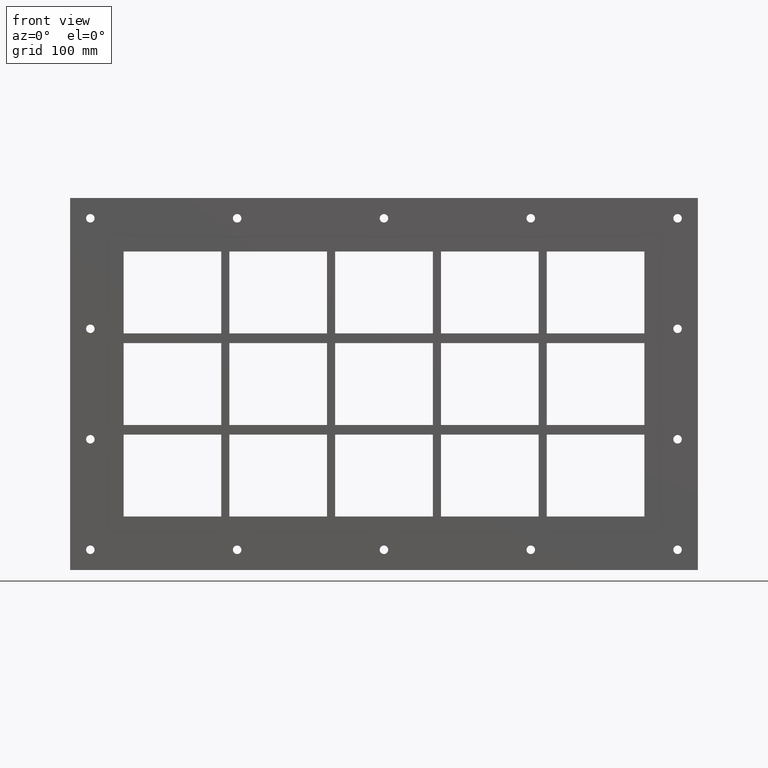
[diagram: clean part render]
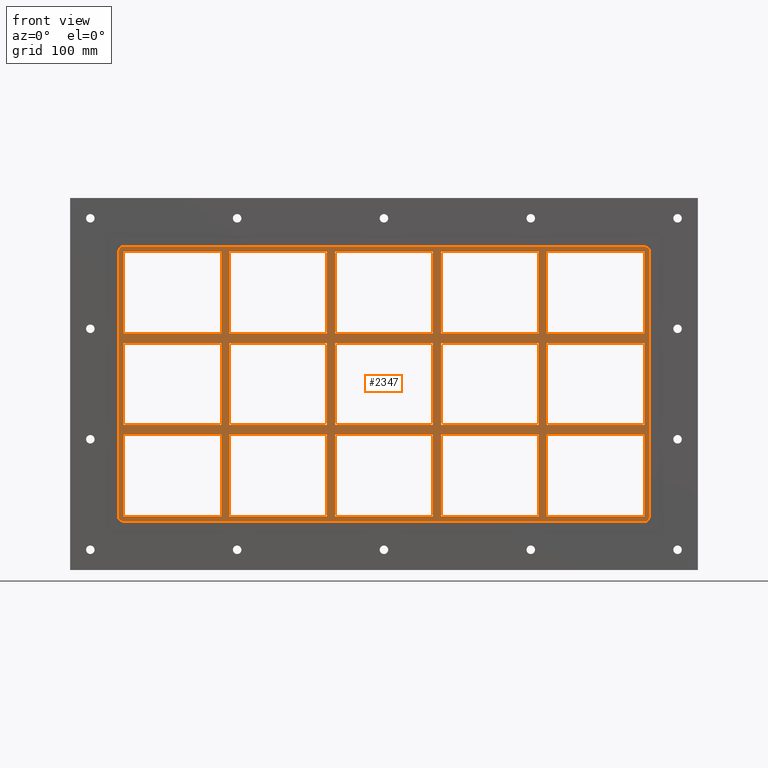
[diagram: same view with one face highlighted and labeled with its STEP entity id]
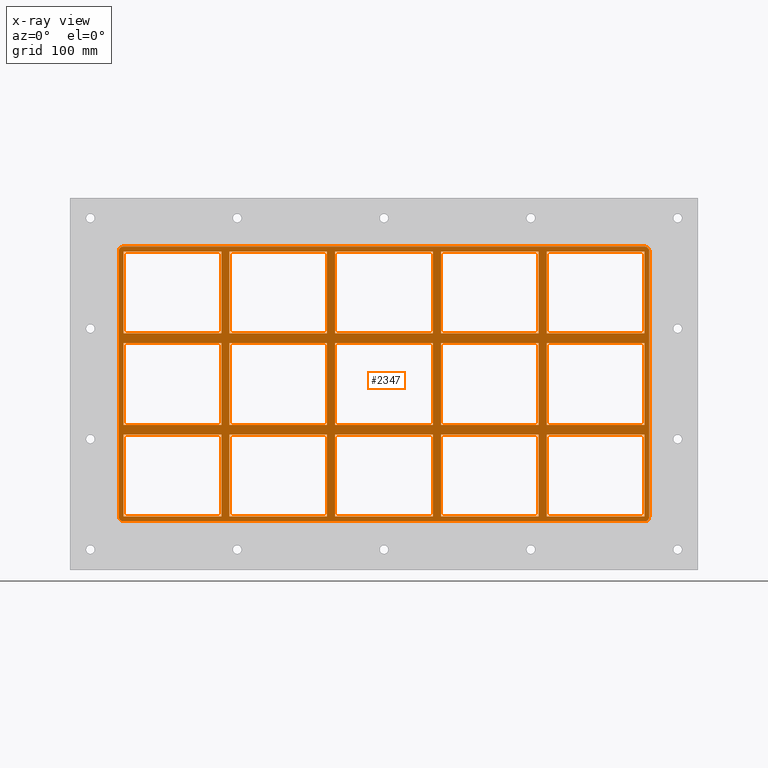
[diagram: x-ray of the same camera — body ghosted, the highlighted face saturated]
A machine part, front view. The second image highlights one B-rep face of the part: STEP entity #2347.
The next image is the same camera in x-ray: the body ghosted, the highlighted face saturated — about 0% of this face is hidden behind the body in this view.
In plain terms, the highlighted planar face has unit normal (0, 1, 0).
Its self-contained STEP definition (entity closure, byte-faithful):
#465=CARTESIAN_POINT('',(-200.7500000000021,-3.0,50.499999999989811));
#466=VERTEX_POINT('',#465);
#475=CARTESIAN_POINT('',(-321.25000000000045,-3.0,50.499999999989775));
#476=VERTEX_POINT('',#475);
#477=CARTESIAN_POINT('',(-200.75000000000205,-3.0,50.499999999989782));
#478=DIRECTION('',(-1.0,0.0,0.0));
#479=VECTOR('',#478,120.49999999999841);
#480=LINE('',#477,#479);
#481=EDGE_CURVE('',#466,#476,#480,.T.);
#505=CARTESIAN_POINT('',(-70.250000000002046,-3.0,50.499999999989797));
#506=VERTEX_POINT('',#505);
#515=CARTESIAN_POINT('',(-190.75000000000728,-3.0,50.499999999989797));
#516=VERTEX_POINT('',#515);
#517=CARTESIAN_POINT('',(-70.250000000002046,-3.0,50.49999999998979));
#518=DIRECTION('',(-1.0,0.0,0.0));
#519=VECTOR('',#518,120.50000000000523);
#520=LINE('',#517,#519);
#521=EDGE_CURVE('',#506,#516,#520,.T.);
#545=CARTESIAN_POINT('',(60.249999999997925,-3.0,50.499999999989811));
#546=VERTEX_POINT('',#545);
#555=CARTESIAN_POINT('',(-60.250000000007304,-3.0,50.499999999989797));
#556=VERTEX_POINT('',#555);
#557=CARTESIAN_POINT('',(60.249999999997954,-3.0,50.499999999989804));
#558=DIRECTION('',(-1.0,0.0,0.0));
#559=VECTOR('',#558,120.50000000000523);
#560=LINE('',#557,#559);
#561=EDGE_CURVE('',#546,#556,#560,.T.);
#587=CARTESIAN_POINT('',(200.74999999999278,-3.0,50.499999999989818));
#588=VERTEX_POINT('',#587);
#603=CARTESIAN_POINT('',(321.25,-3.0,50.499999999989825));
#604=VERTEX_POINT('',#603);
#611=CARTESIAN_POINT('',(321.25,-3.0,50.499999999989825));
#612=DIRECTION('',(-1.0,0.0,0.0));
#613=VECTOR('',#612,120.50000000000722);
#614=LINE('',#611,#613);
#615=EDGE_CURVE('',#604,#588,#614,.T.);
#625=CARTESIAN_POINT('',(190.74999999999795,-3.0,50.499999999989818));
#626=VERTEX_POINT('',#625);
#635=CARTESIAN_POINT('',(70.249999999992738,-3.0,50.499999999989811));
#636=VERTEX_POINT('',#635);
#637=CARTESIAN_POINT('',(190.74999999999795,-3.0,50.499999999989811));
#638=DIRECTION('',(-1.0,0.0,0.0));
#639=VECTOR('',#638,120.50000000000523);
#640=LINE('',#637,#639);
#641=EDGE_CURVE('',#626,#636,#640,.T.);
#667=CARTESIAN_POINT('',(-200.7500000000021,-3.0,62.499999999999893));
#668=VERTEX_POINT('',#667);
#683=CARTESIAN_POINT('',(-321.25000000000045,-3.0,62.499999999999893));
#684=VERTEX_POINT('',#683);
#691=CARTESIAN_POINT('',(-321.25000000000045,-3.0,62.499999999999893));
#692=DIRECTION('',(1.0,0.0,0.0));
#693=VECTOR('',#692,120.49999999999835);
#694=LINE('',#691,#693);
#695=EDGE_CURVE('',#684,#668,#694,.T.);
#705=CARTESIAN_POINT('',(200.74999999999278,-3.0,62.499999999999893));
#706=VERTEX_POINT('',#705);
#715=CARTESIAN_POINT('',(321.25000000000011,-3.0,62.499999999999893));
#716=VERTEX_POINT('',#715);
#717=CARTESIAN_POINT('',(200.74999999999272,-3.0,62.499999999999893));
#718=DIRECTION('',(1.0,0.0,0.0));
#719=VECTOR('',#718,120.50000000000739);
#720=LINE('',#717,#719);
#721=EDGE_CURVE('',#706,#716,#720,.T.);
#747=CARTESIAN_POINT('',(-70.250000000002075,-3.0,62.499999999999893));
#748=VERTEX_POINT('',#747);
#763=CARTESIAN_POINT('',(-190.75000000000728,-3.0,62.499999999999893));
#764=VERTEX_POINT('',#763);
#771=CARTESIAN_POINT('',(-190.7500000000073,-3.0,62.499999999999893));
#772=DIRECTION('',(1.0,0.0,0.0));
#773=VECTOR('',#772,120.5000000000052);
#774=LINE('',#771,#773);
#775=EDGE_CURVE('',#764,#748,#774,.T.);
#787=CARTESIAN_POINT('',(60.249999999997925,-3.0,62.499999999999893));
#788=VERTEX_POINT('',#787);
#803=CARTESIAN_POINT('',(-60.250000000007269,-3.0,62.499999999999893));
#804=VERTEX_POINT('',#803);
#811=CARTESIAN_POINT('',(-60.250000000007276,-3.0,62.499999999999893));
#812=DIRECTION('',(1.0,0.0,0.0));
#813=VECTOR('',#812,120.50000000000517);
#814=LINE('',#811,#813);
#815=EDGE_CURVE('',#804,#788,#814,.T.);
#827=CARTESIAN_POINT('',(190.74999999999795,-3.0,62.499999999999893));
#828=VERTEX_POINT('',#827);
#843=CARTESIAN_POINT('',(70.249999999992738,-3.0,62.499999999999893));
#844=VERTEX_POINT('',#843);
#851=CARTESIAN_POINT('',(70.249999999992724,-3.0,62.499999999999893));
#852=DIRECTION('',(1.0,0.0,0.0));
#853=VECTOR('',#852,120.50000000000523);
#854=LINE('',#851,#853);
#855=EDGE_CURVE('',#844,#828,#854,.T.);
#874=CARTESIAN_POINT('',(-321.25,-3.0,163.50000000000006));
#875=VERTEX_POINT('',#874);
#882=CARTESIAN_POINT('',(-321.25,-3.0,62.499999999999886));
#883=DIRECTION('',(0.0,0.0,1.0));
#884=VECTOR('',#883,101.00000000000014);
#885=LINE('',#882,#884);
#886=EDGE_CURVE('',#684,#875,#885,.T.);
#905=CARTESIAN_POINT('',(321.25000000000011,-3.0,-50.500000000000114));
#906=VERTEX_POINT('',#905);
#913=CARTESIAN_POINT('',(321.25,-3.0,50.499999999989832));
#914=DIRECTION('',(0.0,0.0,-1.0));
#915=VECTOR('',#914,100.99999999998994);
#916=LINE('',#913,#915);
#917=EDGE_CURVE('',#604,#906,#916,.T.);
#928=CARTESIAN_POINT('',(321.25,-3.0,163.50000000000006));
#929=VERTEX_POINT('',#928);
#930=CARTESIAN_POINT('',(321.25,-3.0,163.50000000000006));
#931=DIRECTION('',(0.0,0.0,-1.0));
#932=VECTOR('',#931,101.00000000000016);
#933=LINE('',#930,#932);
#934=EDGE_CURVE('',#929,#716,#933,.T.);
#959=CARTESIAN_POINT('',(190.74999999999795,-3.0,163.50000000000006));
#960=VERTEX_POINT('',#959);
#961=CARTESIAN_POINT('',(190.74999999999795,-3.0,62.499999999999886));
#962=DIRECTION('',(0.0,0.0,1.0));
#963=VECTOR('',#962,101.00000000000017);
#964=LINE('',#961,#963);
#965=EDGE_CURVE('',#828,#960,#964,.T.);
#998=CARTESIAN_POINT('',(200.74999999999278,-3.0,163.50000000000006));
#999=VERTEX_POINT('',#998);
#1006=CARTESIAN_POINT('',(200.74999999999278,-3.0,163.50000000000006));
#1007=DIRECTION('',(0.0,0.0,-1.0));
#1008=VECTOR('',#1007,101.00000000000016);
#1009=LINE('',#1006,#1008);
#1010=EDGE_CURVE('',#999,#706,#1009,.T.);
#1021=CARTESIAN_POINT('',(60.249999999997925,-3.0,163.50000000000006));
#1022=VERTEX_POINT('',#1021);
#1023=CARTESIAN_POINT('',(60.249999999997925,-3.0,62.499999999999886));
#1024=DIRECTION('',(0.0,0.0,1.0));
#1025=VECTOR('',#1024,101.00000000000017);
#1026=LINE('',#1023,#1025);
#1027=EDGE_CURVE('',#788,#1022,#1026,.T.);
#1060=CARTESIAN_POINT('',(70.249999999992738,-3.0,163.50000000000006));
#1061=VERTEX_POINT('',#1060);
#1068=CARTESIAN_POINT('',(70.249999999992738,-3.0,163.50000000000006));
#1069=DIRECTION('',(0.0,0.0,-1.0));
#1070=VECTOR('',#1069,101.00000000000016);
#1071=LINE('',#1068,#1070);
#1072=EDGE_CURVE('',#1061,#844,#1071,.T.);
#1083=CARTESIAN_POINT('',(-70.250000000002075,-3.0,163.50000000000006));
#1084=VERTEX_POINT('',#1083);
#1085=CARTESIAN_POINT('',(-70.250000000002075,-3.0,62.499999999999886));
#1086=DIRECTION('',(0.0,0.0,1.0));
#1087=VECTOR('',#1086,101.00000000000017);
#1088=LINE('',#1085,#1087);
#1089=EDGE_CURVE('',#748,#1084,#1088,.T.);
#1122=CARTESIAN_POINT('',(-60.250000000007269,-3.0,163.50000000000006));
#1123=VERTEX_POINT('',#1122);
#1130=CARTESIAN_POINT('',(-60.250000000007269,-3.0,163.50000000000006));
#1131=DIRECTION('',(0.0,0.0,-1.0));
#1132=VECTOR('',#1131,101.00000000000016);
#1133=LINE('',#1130,#1132);
#1134=EDGE_CURVE('',#1123,#804,#1133,.T.);
#1145=CARTESIAN_POINT('',(-200.7500000000021,-3.0,163.50000000000006));
#1146=VERTEX_POINT('',#1145);
#1147=CARTESIAN_POINT('',(-200.7500000000021,-3.0,62.499999999999886));
#1148=DIRECTION('',(0.0,0.0,1.0));
#1149=VECTOR('',#1148,101.00000000000017);
#1150=LINE('',#1147,#1149);
#1151=EDGE_CURVE('',#668,#1146,#1150,.T.);
#1184=CARTESIAN_POINT('',(-200.7500000000021,-3.0,-50.500000000000114));
#1185=VERTEX_POINT('',#1184);
#1192=CARTESIAN_POINT('',(-200.7500000000021,-3.0,-50.500000000000114));
#1193=DIRECTION('',(0.0,0.0,1.0));
#1194=VECTOR('',#1193,100.99999999998991);
#1195=LINE('',#1192,#1194);
#1196=EDGE_CURVE('',#1185,#466,#1195,.T.);
#1215=CARTESIAN_POINT('',(-190.75000000000728,-3.0,163.50000000000006));
#1216=VERTEX_POINT('',#1215);
#1223=CARTESIAN_POINT('',(-190.75000000000728,-3.0,163.50000000000006));
#1224=DIRECTION('',(0.0,0.0,-1.0));
#1225=VECTOR('',#1224,101.00000000000016);
#1226=LINE('',#1223,#1225);
#1227=EDGE_CURVE('',#1216,#764,#1226,.T.);
#1651=CARTESIAN_POINT('',(190.74999999999795,-3.0,-50.500000000000114));
#1652=VERTEX_POINT('',#1651);
#1659=CARTESIAN_POINT('',(190.74999999999795,-3.0,-50.500000000000114));
#1660=DIRECTION('',(0.0,0.0,1.0));
#1661=VECTOR('',#1660,100.99999999998991);
#1662=LINE('',#1659,#1661);
#1663=EDGE_CURVE('',#1652,#626,#1662,.T.);
#1673=CARTESIAN_POINT('',(190.74999999999795,-3.0,-62.500000000010196));
#1674=VERTEX_POINT('',#1673);
#1682=CARTESIAN_POINT('',(190.74999999999795,-3.0,-163.50000000000006));
#1683=VERTEX_POINT('',#1682);
#1690=CARTESIAN_POINT('',(190.74999999999795,-3.0,-163.50000000000006));
#1691=DIRECTION('',(0.0,0.0,1.0));
#1692=VECTOR('',#1691,100.99999999998985);
#1693=LINE('',#1690,#1692);
#1694=EDGE_CURVE('',#1683,#1674,#1693,.T.);
#1705=CARTESIAN_POINT('',(200.74999999999278,-3.0,-50.500000000000114));
#1706=VERTEX_POINT('',#1705);
#1707=CARTESIAN_POINT('',(200.74999999999278,-3.0,50.499999999989825));
#1708=DIRECTION('',(0.0,0.0,-1.0));
#1709=VECTOR('',#1708,100.99999999998994);
#1710=LINE('',#1707,#1709);
#1711=EDGE_CURVE('',#588,#1706,#1710,.T.);
#1728=CARTESIAN_POINT('',(200.74999999999278,-3.0,-62.500000000010196));
#1729=VERTEX_POINT('',#1728);
#1736=CARTESIAN_POINT('',(200.74999999999278,-3.0,-163.49999999998653));
#1737=VERTEX_POINT('',#1736);
#1738=CARTESIAN_POINT('',(200.74999999999278,-3.0,-62.500000000010175));
#1739=DIRECTION('',(0.0,0.0,-1.0));
#1740=VECTOR('',#1739,100.9999999999763);
#1741=LINE('',#1738,#1740);
#1742=EDGE_CURVE('',#1729,#1737,#1741,.T.);
#1761=CARTESIAN_POINT('',(60.249999999997925,-3.0,-50.500000000000114));
#1762=VERTEX_POINT('',#1761);
#1769=CARTESIAN_POINT('',(60.249999999997925,-3.0,-50.500000000000114));
#1770=DIRECTION('',(0.0,0.0,1.0));
#1771=VECTOR('',#1770,100.99999999998991);
#1772=LINE('',#1769,#1771);
#1773=EDGE_CURVE('',#1762,#546,#1772,.T.);
#1783=CARTESIAN_POINT('',(60.249999999997925,-3.0,-62.500000000010196));
#1784=VERTEX_POINT('',#1783);
#1792=CARTESIAN_POINT('',(60.249999999997925,-3.0,-163.50000000000006));
#1793=VERTEX_POINT('',#1792);
#1800=CARTESIAN_POINT('',(60.249999999997925,-3.0,-163.50000000000006));
#1801=DIRECTION('',(0.0,0.0,1.0));
#1802=VECTOR('',#1801,100.99999999998985);
#1803=LINE('',#1800,#1802);
#1804=EDGE_CURVE('',#1793,#1784,#1803,.T.);
#1815=CARTESIAN_POINT('',(70.249999999992738,-3.0,-50.500000000000114));
#1816=VERTEX_POINT('',#1815);
#1817=CARTESIAN_POINT('',(70.249999999992738,-3.0,50.499999999989825));
#1818=DIRECTION('',(0.0,0.0,-1.0));
#1819=VECTOR('',#1818,100.99999999998994);
#1820=LINE('',#1817,#1819);
#1821=EDGE_CURVE('',#636,#1816,#1820,.T.);
#1838=CARTESIAN_POINT('',(70.249999999992738,-3.0,-62.500000000010232));
#1839=VERTEX_POINT('',#1838);
#1846=CARTESIAN_POINT('',(70.249999999992738,-3.0,-163.49999999998653));
#1847=VERTEX_POINT('',#1846);
#1848=CARTESIAN_POINT('',(70.249999999992738,-3.0,-62.500000000010232));
#1849=DIRECTION('',(0.0,0.0,-1.0));
#1850=VECTOR('',#1849,100.99999999997624);
#1851=LINE('',#1848,#1850);
#1852=EDGE_CURVE('',#1839,#1847,#1851,.T.);
#1871=CARTESIAN_POINT('',(-70.250000000002075,-3.0,-50.500000000000114));
#1872=VERTEX_POINT('',#1871);
#1879=CARTESIAN_POINT('',(-70.250000000002075,-3.0,-50.500000000000114));
#1880=DIRECTION('',(0.0,0.0,1.0));
#1881=VECTOR('',#1880,100.99999999998988);
#1882=LINE('',#1879,#1881);
#1883=EDGE_CURVE('',#1872,#506,#1882,.T.);
#1893=CARTESIAN_POINT('',(-70.250000000002075,-3.0,-62.500000000010218));
#1894=VERTEX_POINT('',#1893);
#1902=CARTESIAN_POINT('',(-70.250000000002075,-3.0,-163.50000000000006));
#1903=VERTEX_POINT('',#1902);
#1910=CARTESIAN_POINT('',(-70.250000000002075,-3.0,-163.50000000000006));
#1911=DIRECTION('',(0.0,0.0,1.0));
#1912=VECTOR('',#1911,100.99999999998984);
#1913=LINE('',#1910,#1912);
#1914=EDGE_CURVE('',#1903,#1894,#1913,.T.);
#1925=CARTESIAN_POINT('',(-60.250000000007269,-3.0,-50.500000000000114));
#1926=VERTEX_POINT('',#1925);
#1927=CARTESIAN_POINT('',(-60.250000000007269,-3.0,50.499999999989797));
#1928=DIRECTION('',(0.0,0.0,-1.0));
#1929=VECTOR('',#1928,100.99999999998991);
#1930=LINE('',#1927,#1929);
#1931=EDGE_CURVE('',#556,#1926,#1930,.T.);
#1948=CARTESIAN_POINT('',(-60.250000000007269,-3.0,-62.500000000010232));
#1949=VERTEX_POINT('',#1948);
#1956=CARTESIAN_POINT('',(-60.250000000007269,-3.0,-163.49999999998653));
#1957=VERTEX_POINT('',#1956);
#1958=CARTESIAN_POINT('',(-60.250000000007269,-3.0,-62.500000000010232));
#1959=DIRECTION('',(0.0,0.0,-1.0));
#1960=VECTOR('',#1959,100.99999999997624);
#1961=LINE('',#1958,#1960);
#1962=EDGE_CURVE('',#1949,#1957,#1961,.T.);
#1981=CARTESIAN_POINT('',(-190.75000000000728,-3.0,-163.49999999998653));
#1982=VERTEX_POINT('',#1981);
#1989=CARTESIAN_POINT('',(-70.250000000002075,-3.0,-163.50000000000006));
#1990=DIRECTION('',(-1.0,0.0,0.0));
#1991=VECTOR('',#1990,120.5000000000052);
#1992=LINE('',#1989,#1991);
#1993=EDGE_CURVE('',#1903,#1982,#1992,.T.);
#2006=CARTESIAN_POINT('',(60.249999999997925,-3.0,-163.50000000000006));
#2007=DIRECTION('',(-1.0,0.0,0.0));
#2008=VECTOR('',#2007,120.5000000000052);
#2009=LINE('',#2006,#2008);
#2010=EDGE_CURVE('',#1793,#1957,#2009,.T.);
#2023=CARTESIAN_POINT('',(190.74999999999795,-3.0,-163.50000000000006));
#2024=DIRECTION('',(-1.0,0.0,0.0));
#2025=VECTOR('',#2024,120.50000000000522);
#2026=LINE('',#2023,#2025);
#2027=EDGE_CURVE('',#1683,#1847,#2026,.T.);
#2038=CARTESIAN_POINT('',(321.25,-3.0,-163.50000000000006));
#2039=VERTEX_POINT('',#2038);
#2040=CARTESIAN_POINT('',(321.25,-3.0,-163.50000000000006));
#2041=DIRECTION('',(-1.0,0.0,0.0));
#2042=VECTOR('',#2041,120.50000000000722);
#2043=LINE('',#2040,#2042);
#2044=EDGE_CURVE('',#2039,#1737,#2043,.T.);
#2056=CARTESIAN_POINT('',(0.0,-3.0,0.0));
#2057=DIRECTION('',(0.0,1.0,0.0));
#2058=DIRECTION('',(0.0,0.0,1.0));
#2059=AXIS2_PLACEMENT_3D('',#2056,#2057,#2058);
#2060=PLANE('',#2059);
#2061=CARTESIAN_POINT('',(327.25,-3.0,-163.5));
#2062=VERTEX_POINT('',#2061);
#2063=CARTESIAN_POINT('',(321.25,-3.0,-169.50000000000003));
#2064=VERTEX_POINT('',#2063);
#2065=CARTESIAN_POINT('',(321.25,-3.0,-163.5));
#2066=DIRECTION('',(0.0,1.0,0.0));
#2067=DIRECTION('',(0.707106781186543,0.0,-0.707106781186552));
#2068=AXIS2_PLACEMENT_3D('',#2065,#2066,#2067);
#2069=CIRCLE('',#2068,6.000000000000001);
#2070=EDGE_CURVE('',#2062,#2064,#2069,.T.);
#2071=ORIENTED_EDGE('',*,*,#2070,.F.);
#2072=CARTESIAN_POINT('',(327.25,-3.0,163.5));
#2073=VERTEX_POINT('',#2072);
#2074=CARTESIAN_POINT('',(327.25,-3.0,-163.50000000000003));
#2075=DIRECTION('',(0.0,0.0,1.0));
#2076=VECTOR('',#2075,327.0);
#2077=LINE('',#2074,#2076);
#2078=EDGE_CURVE('',#2062,#2073,#2077,.T.);
#2079=ORIENTED_EDGE('',*,*,#2078,.T.);
#2080=CARTESIAN_POINT('',(321.24999999999994,-3.0,169.50000000000003));
#2081=VERTEX_POINT('',#2080);
#2082=CARTESIAN_POINT('',(321.25,-3.0,163.5));
#2083=DIRECTION('',(0.0,1.0,0.0));
#2084=DIRECTION('',(0.707106781186543,0.0,0.707106781186552));
#2085=AXIS2_PLACEMENT_3D('',#2082,#2083,#2084);
#2086=CIRCLE('',#2085,6.000000000000001);
#2087=EDGE_CURVE('',#2081,#2073,#2086,.T.);
#2088=ORIENTED_EDGE('',*,*,#2087,.F.);
#2089=CARTESIAN_POINT('',(-321.25,-3.0,169.50000000000003));
#2090=VERTEX_POINT('',#2089);
#2091=CARTESIAN_POINT('',(321.25,-3.0,169.50000000000003));
#2092=DIRECTION('',(-1.0,0.0,0.0));
#2093=VECTOR('',#2092,642.5);
#2094=LINE('',#2091,#2093);
#2095=EDGE_CURVE('',#2081,#2090,#2094,.T.);
#2096=ORIENTED_EDGE('',*,*,#2095,.T.);
#2097=CARTESIAN_POINT('',(-327.25,-3.0,163.5));
#2098=VERTEX_POINT('',#2097);
#2099=CARTESIAN_POINT('',(-321.25,-3.0,163.5));
#2100=DIRECTION('',(0.0,1.0,0.0));
#2101=DIRECTION('',(-0.707106781186543,0.0,0.707106781186552));
#2102=AXIS2_PLACEMENT_3D('',#2099,#2100,#2101);
#2103=CIRCLE('',#2102,6.000000000000001);
#2104=EDGE_CURVE('',#2098,#2090,#2103,.T.);
#2105=ORIENTED_EDGE('',*,*,#2104,.F.);
#2106=CARTESIAN_POINT('',(-327.25,-3.0,-163.5));
#2107=VERTEX_POINT('',#2106);
#2108=CARTESIAN_POINT('',(-327.25,-3.0,163.50000000000003));
#2109=DIRECTION('',(0.0,0.0,-1.0));
#2110=VECTOR('',#2109,327.0);
#2111=LINE('',#2108,#2110);
#2112=EDGE_CURVE('',#2098,#2107,#2111,.T.);
#2113=ORIENTED_EDGE('',*,*,#2112,.T.);
#2114=CARTESIAN_POINT('',(-321.24999999999994,-3.0,-169.50000000000003));
#2115=VERTEX_POINT('',#2114);
#2116=CARTESIAN_POINT('',(-321.25,-3.0,-163.5));
#2117=DIRECTION('',(0.0,1.0,0.0));
#2118=DIRECTION('',(-0.707106781186543,0.0,-0.707106781186552));
#2119=AXIS2_PLACEMENT_3D('',#2116,#2117,#2118);
#2120=CIRCLE('',#2119,6.000000000000001);
#2121=EDGE_CURVE('',#2115,#2107,#2120,.T.);
#2122=ORIENTED_EDGE('',*,*,#2121,.F.);
#2123=CARTESIAN_POINT('',(-321.25,-3.0,-169.50000000000003));
#2124=DIRECTION('',(1.0,0.0,0.0));
#2125=VECTOR('',#2124,642.5);
#2126=LINE('',#2123,#2125);
#2127=EDGE_CURVE('',#2115,#2064,#2126,.T.);
#2128=ORIENTED_EDGE('',*,*,#2127,.T.);
#2129=EDGE_LOOP('',(#2071,#2079,#2088,#2096,#2105,#2113,#2122,#2128));
#2130=FACE_OUTER_BOUND('',#2129,.T.);
#2131=ORIENTED_EDGE('',*,*,#886,.T.);
#2132=CARTESIAN_POINT('',(-321.25,-3.0,163.50000000000006));
#2133=DIRECTION('',(1.0,0.0,0.0));
#2134=VECTOR('',#2133,120.4999999999979);
#2135=LINE('',#2132,#2134);
#2136=EDGE_CURVE('',#875,#1146,#2135,.T.);
#2137=ORIENTED_EDGE('',*,*,#2136,.T.);
#2138=ORIENTED_EDGE('',*,*,#1151,.F.);
#2139=ORIENTED_EDGE('',*,*,#695,.F.);
#2140=EDGE_LOOP('',(#2131,#2137,#2138,#2139));
#2141=FACE_BOUND('',#2140,.T.);
#2142=ORIENTED_EDGE('',*,*,#917,.T.);
#2143=CARTESIAN_POINT('',(200.74999999999272,-3.0,-50.500000000000114));
#2144=DIRECTION('',(1.0,0.0,0.0));
#2145=VECTOR('',#2144,120.50000000000739);
#2146=LINE('',#2143,#2145);
#2147=EDGE_CURVE('',#1706,#906,#2146,.T.);
#2148=ORIENTED_EDGE('',*,*,#2147,.F.);
#2149=ORIENTED_EDGE('',*,*,#1711,.F.);
#2150=ORIENTED_EDGE('',*,*,#615,.F.);
#2151=EDGE_LOOP('',(#2142,#2148,#2149,#2150));
#2152=FACE_BOUND('',#2151,.T.);
#2153=ORIENTED_EDGE('',*,*,#1663,.F.);
#2154=CARTESIAN_POINT('',(70.249999999992724,-3.0,-50.500000000000114));
#2155=DIRECTION('',(1.0,0.0,0.0));
#2156=VECTOR('',#2155,120.50000000000523);
#2157=LINE('',#2154,#2156);
#2158=EDGE_CURVE('',#1816,#1652,#2157,.T.);
#2159=ORIENTED_EDGE('',*,*,#2158,.F.);
#2160=ORIENTED_EDGE('',*,*,#1821,.F.);
#2161=ORIENTED_EDGE('',*,*,#641,.F.);
#2162=EDGE_LOOP('',(#2153,#2159,#2160,#2161));
#2163=FACE_BOUND('',#2162,.T.);
#2164=ORIENTED_EDGE('',*,*,#1773,.F.);
#2165=CARTESIAN_POINT('',(-60.250000000007276,-3.0,-50.500000000000114));
#2166=DIRECTION('',(1.0,0.0,0.0));
#2167=VECTOR('',#2166,120.50000000000517);
#2168=LINE('',#2165,#2167);
#2169=EDGE_CURVE('',#1926,#1762,#2168,.T.);
#2170=ORIENTED_EDGE('',*,*,#2169,.F.);
#2171=ORIENTED_EDGE('',*,*,#1931,.F.);
#2172=ORIENTED_EDGE('',*,*,#561,.F.);
#2173=EDGE_LOOP('',(#2164,#2170,#2171,#2172));
#2174=FACE_BOUND('',#2173,.T.);
#2175=ORIENTED_EDGE('',*,*,#1883,.F.);
#2176=CARTESIAN_POINT('',(-190.75000000000728,-3.0,-50.500000000000114));
#2177=VERTEX_POINT('',#2176);
#2178=CARTESIAN_POINT('',(-190.7500000000073,-3.0,-50.500000000000114));
#2179=DIRECTION('',(1.0,0.0,0.0));
#2180=VECTOR('',#2179,120.5000000000052);
#2181=LINE('',#2178,#2180);
#2182=EDGE_CURVE('',#2177,#1872,#2181,.T.);
#2183=ORIENTED_EDGE('',*,*,#2182,.F.);
#2184=CARTESIAN_POINT('',(-190.75000000000728,-3.0,50.499999999989797));
#2185=DIRECTION('',(0.0,0.0,-1.0));
#2186=VECTOR('',#2185,100.99999999998991);
#2187=LINE('',#2184,#2186);
#2188=EDGE_CURVE('',#516,#2177,#2187,.T.);
#2189=ORIENTED_EDGE('',*,*,#2188,.F.);
#2190=ORIENTED_EDGE('',*,*,#521,.F.);
#2191=EDGE_LOOP('',(#2175,#2183,#2189,#2190));
#2192=FACE_BOUND('',#2191,.T.);
#2193=ORIENTED_EDGE('',*,*,#855,.F.);
#2194=ORIENTED_EDGE('',*,*,#1072,.F.);
#2195=CARTESIAN_POINT('',(70.249999999992724,-3.0,163.50000000000006));
#2196=DIRECTION('',(1.0,0.0,0.0));
#2197=VECTOR('',#2196,120.50000000000523);
#2198=LINE('',#2195,#2197);
#2199=EDGE_CURVE('',#1061,#960,#2198,.T.);
#2200=ORIENTED_EDGE('',*,*,#2199,.T.);
#2201=ORIENTED_EDGE('',*,*,#965,.F.);
#2202=EDGE_LOOP('',(#2193,#2194,#2200,#2201));
#2203=FACE_BOUND('',#2202,.T.);
#2204=ORIENTED_EDGE('',*,*,#815,.F.);
#2205=ORIENTED_EDGE('',*,*,#1134,.F.);
#2206=CARTESIAN_POINT('',(-60.250000000007276,-3.0,163.50000000000006));
#2207=DIRECTION('',(1.0,0.0,0.0));
#2208=VECTOR('',#2207,120.5000000000052);
#2209=LINE('',#2206,#2208);
#2210=EDGE_CURVE('',#1123,#1022,#2209,.T.);
#2211=ORIENTED_EDGE('',*,*,#2210,.T.);
#2212=ORIENTED_EDGE('',*,*,#1027,.F.);
#2213=EDGE_LOOP('',(#2204,#2205,#2211,#2212));
#2214=FACE_BOUND('',#2213,.T.);
#2215=ORIENTED_EDGE('',*,*,#775,.F.);
#2216=ORIENTED_EDGE('',*,*,#1227,.F.);
#2217=CARTESIAN_POINT('',(-190.75000000000728,-3.0,163.50000000000006));
#2218=DIRECTION('',(1.0,0.0,0.0));
#2219=VECTOR('',#2218,120.5000000000052);
#2220=LINE('',#2217,#2219);
#2221=EDGE_CURVE('',#1216,#1084,#2220,.T.);
#2222=ORIENTED_EDGE('',*,*,#2221,.T.);
#2223=ORIENTED_EDGE('',*,*,#1089,.F.);
#2224=EDGE_LOOP('',(#2215,#2216,#2222,#2223));
#2225=FACE_BOUND('',#2224,.T.);
#2226=ORIENTED_EDGE('',*,*,#481,.F.);
#2227=ORIENTED_EDGE('',*,*,#1196,.F.);
#2228=CARTESIAN_POINT('',(-321.25000000000045,-3.0,-50.500000000000114));
#2229=VERTEX_POINT('',#2228);
#2230=CARTESIAN_POINT('',(-321.25000000000045,-3.0,-50.500000000000114));
#2231=DIRECTION('',(1.0,0.0,0.0));
#2232=VECTOR('',#2231,120.49999999999835);
#2233=LINE('',#2230,#2232);
#2234=EDGE_CURVE('',#2229,#1185,#2233,.T.);
#2235=ORIENTED_EDGE('',*,*,#2234,.F.);
#2236=CARTESIAN_POINT('',(-321.25,-3.0,-50.500000000000114));
#2237=DIRECTION('',(0.0,0.0,1.0));
#2238=VECTOR('',#2237,100.99999999998988);
#2239=LINE('',#2236,#2238);
#2240=EDGE_CURVE('',#2229,#476,#2239,.T.);
#2241=ORIENTED_EDGE('',*,*,#2240,.T.);
#2242=EDGE_LOOP('',(#2226,#2227,#2235,#2241));
#2243=FACE_BOUND('',#2242,.T.);
#2244=ORIENTED_EDGE('',*,*,#721,.F.);
#2245=ORIENTED_EDGE('',*,*,#1010,.F.);
#2246=CARTESIAN_POINT('',(200.74999999999278,-3.0,163.50000000000006));
#2247=DIRECTION('',(1.0,0.0,0.0));
#2248=VECTOR('',#2247,120.50000000000722);
#2249=LINE('',#2246,#2248);
#2250=EDGE_CURVE('',#999,#929,#2249,.T.);
#2251=ORIENTED_EDGE('',*,*,#2250,.T.);
#2252=ORIENTED_EDGE('',*,*,#934,.T.);
#2253=EDGE_LOOP('',(#2244,#2245,#2251,#2252));
#2254=FACE_BOUND('',#2253,.T.);
#2255=ORIENTED_EDGE('',*,*,#2027,.T.);
#2256=ORIENTED_EDGE('',*,*,#1852,.F.);
#2257=CARTESIAN_POINT('',(190.74999999999795,-3.0,-62.500000000010189));
#2258=DIRECTION('',(-1.0,0.0,0.0));
#2259=VECTOR('',#2258,120.50000000000523);
#2260=LINE('',#2257,#2259);
#2261=EDGE_CURVE('',#1674,#1839,#2260,.T.);
#2262=ORIENTED_EDGE('',*,*,#2261,.F.);
#2263=ORIENTED_EDGE('',*,*,#1694,.F.);
#2264=EDGE_LOOP('',(#2255,#2256,#2262,#2263));
#2265=FACE_BOUND('',#2264,.T.);
#2266=ORIENTED_EDGE('',*,*,#2010,.T.);
#2267=ORIENTED_EDGE('',*,*,#1962,.F.);
#2268=CARTESIAN_POINT('',(60.249999999997954,-3.0,-62.500000000010196));
#2269=DIRECTION('',(-1.0,0.0,0.0));
#2270=VECTOR('',#2269,120.50000000000523);
#2271=LINE('',#2268,#2270);
#2272=EDGE_CURVE('',#1784,#1949,#2271,.T.);
#2273=ORIENTED_EDGE('',*,*,#2272,.F.);
#2274=ORIENTED_EDGE('',*,*,#1804,.F.);
#2275=EDGE_LOOP('',(#2266,#2267,#2273,#2274));
#2276=FACE_BOUND('',#2275,.T.);
#2277=ORIENTED_EDGE('',*,*,#1993,.T.);
#2278=CARTESIAN_POINT('',(-190.75000000000728,-3.0,-62.500000000010225));
#2279=VERTEX_POINT('',#2278);
#2280=CARTESIAN_POINT('',(-190.75000000000728,-3.0,-62.500000000010232));
#2281=DIRECTION('',(0.0,0.0,-1.0));
#2282=VECTOR('',#2281,100.99999999997624);
#2283=LINE('',#2280,#2282);
#2284=EDGE_CURVE('',#2279,#1982,#2283,.T.);
#2285=ORIENTED_EDGE('',*,*,#2284,.F.);
#2286=CARTESIAN_POINT('',(-70.250000000002046,-3.0,-62.50000000001021));
#2287=DIRECTION('',(-1.0,0.0,0.0));
#2288=VECTOR('',#2287,120.50000000000523);
#2289=LINE('',#2286,#2288);
#2290=EDGE_CURVE('',#1894,#2279,#2289,.T.);
#2291=ORIENTED_EDGE('',*,*,#2290,.F.);
#2292=ORIENTED_EDGE('',*,*,#1914,.F.);
#2293=EDGE_LOOP('',(#2277,#2285,#2291,#2292));
#2294=FACE_BOUND('',#2293,.T.);
#2295=ORIENTED_EDGE('',*,*,#1742,.F.);
#2296=CARTESIAN_POINT('',(321.25,-3.0,-62.500000000010175));
#2297=VERTEX_POINT('',#2296);
#2298=CARTESIAN_POINT('',(321.25,-3.0,-62.500000000010175));
#2299=DIRECTION('',(-1.0,0.0,0.0));
#2300=VECTOR('',#2299,120.50000000000722);
#2301=LINE('',#2298,#2300);
#2302=EDGE_CURVE('',#2297,#1729,#2301,.T.);
#2303=ORIENTED_EDGE('',*,*,#2302,.F.);
#2304=CARTESIAN_POINT('',(321.25,-3.0,-62.500000000010175));
#2305=DIRECTION('',(0.0,0.0,-1.0));
#2306=VECTOR('',#2305,100.99999999998985);
#2307=LINE('',#2304,#2306);
#2308=EDGE_CURVE('',#2297,#2039,#2307,.T.);
#2309=ORIENTED_EDGE('',*,*,#2308,.T.);
#2310=ORIENTED_EDGE('',*,*,#2044,.T.);
#2311=EDGE_LOOP('',(#2295,#2303,#2309,#2310));
#2312=FACE_BOUND('',#2311,.T.);
#2313=CARTESIAN_POINT('',(-200.7500000000021,-3.0,-62.500000000010225));
#2314=VERTEX_POINT('',#2313);
#2315=CARTESIAN_POINT('',(-321.25000000000045,-3.0,-62.500000000010232));
#2316=VERTEX_POINT('',#2315);
#2317=CARTESIAN_POINT('',(-200.75000000000205,-3.0,-62.500000000010218));
#2318=DIRECTION('',(-1.0,0.0,0.0));
#2319=VECTOR('',#2318,120.49999999999841);
#2320=LINE('',#2317,#2319);
#2321=EDGE_CURVE('',#2314,#2316,#2320,.T.);
#2322=ORIENTED_EDGE('',*,*,#2321,.F.);
#2323=CARTESIAN_POINT('',(-200.7500000000021,-3.0,-163.50000000000006));
#2324=VERTEX_POINT('',#2323);
#2325=CARTESIAN_POINT('',(-200.7500000000021,-3.0,-163.50000000000006));
#2326=DIRECTION('',(0.0,0.0,1.0));
#2327=VECTOR('',#2326,100.99999999998983);
#2328=LINE('',#2325,#2327);
#2329=EDGE_CURVE('',#2324,#2314,#2328,.T.);
#2330=ORIENTED_EDGE('',*,*,#2329,.F.);
#2331=CARTESIAN_POINT('',(-321.25,-3.0,-163.50000000000006));
#2332=VERTEX_POINT('',#2331);
#2333=CARTESIAN_POINT('',(-200.7500000000021,-3.0,-163.50000000000006));
#2334=DIRECTION('',(-1.0,0.0,0.0));
#2335=VECTOR('',#2334,120.4999999999979);
#2336=LINE('',#2333,#2335);
#2337=EDGE_CURVE('',#2324,#2332,#2336,.T.);
#2338=ORIENTED_EDGE('',*,*,#2337,.T.);
#2339=CARTESIAN_POINT('',(-321.25,-3.0,-163.50000000000006));
#2340=DIRECTION('',(0.0,0.0,1.0));
#2341=VECTOR('',#2340,100.99999999998983);
#2342=LINE('',#2339,#2341);
#2343=EDGE_CURVE('',#2332,#2316,#2342,.T.);
#2344=ORIENTED_EDGE('',*,*,#2343,.T.);
#2345=EDGE_LOOP('',(#2322,#2330,#2338,#2344));
#2346=FACE_BOUND('',#2345,.T.);
#2347=ADVANCED_FACE('',(#2130,#2141,#2152,#2163,#2174,#2192,#2203,#2214,#2225,#2243,#2254,#2265,#2276,#2294,#2312,#2346),#2060,.F.);